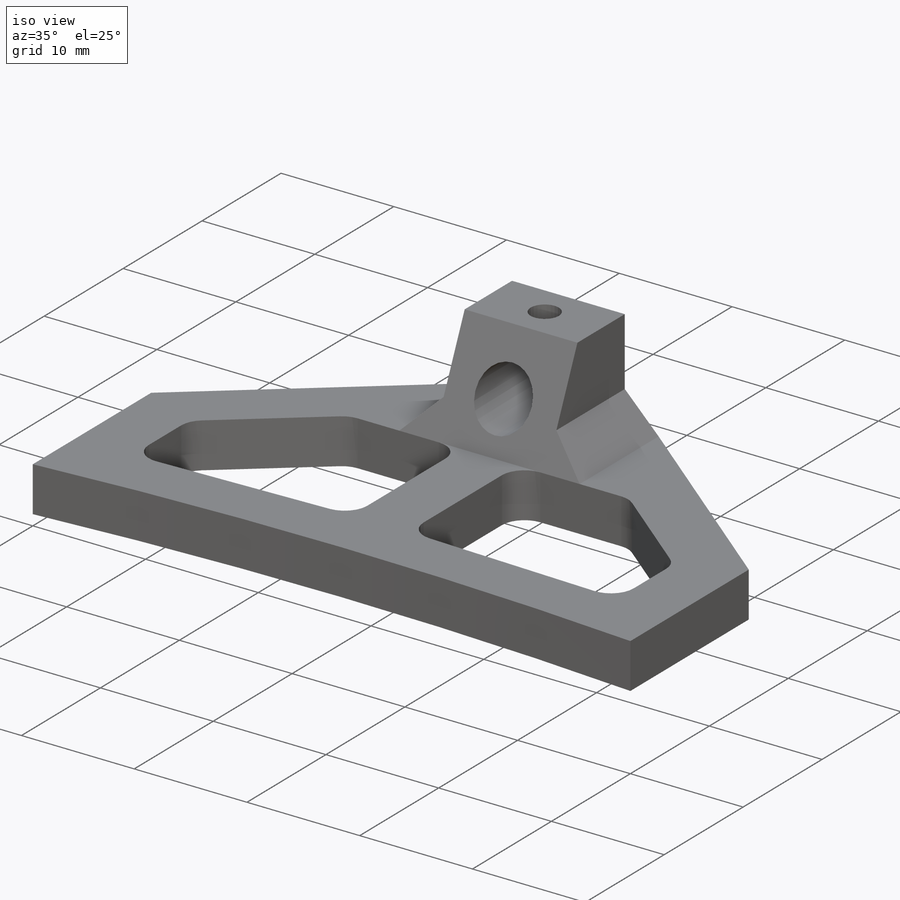
[diagram: iso view]
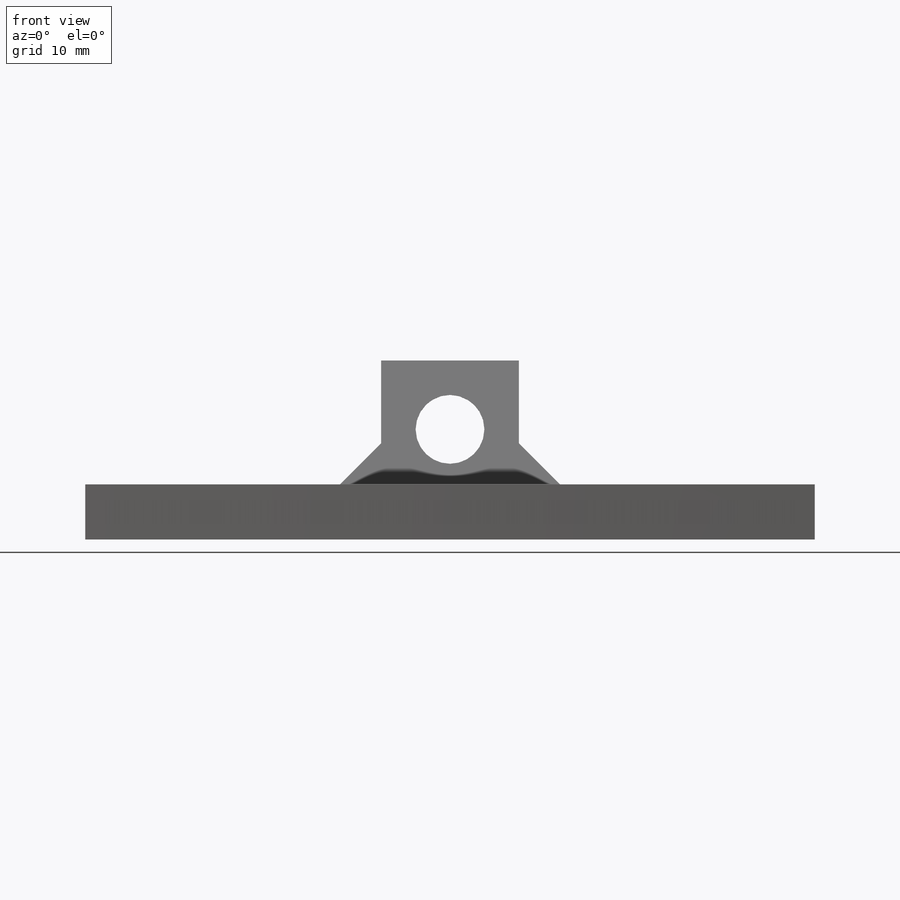
[diagram: front view]
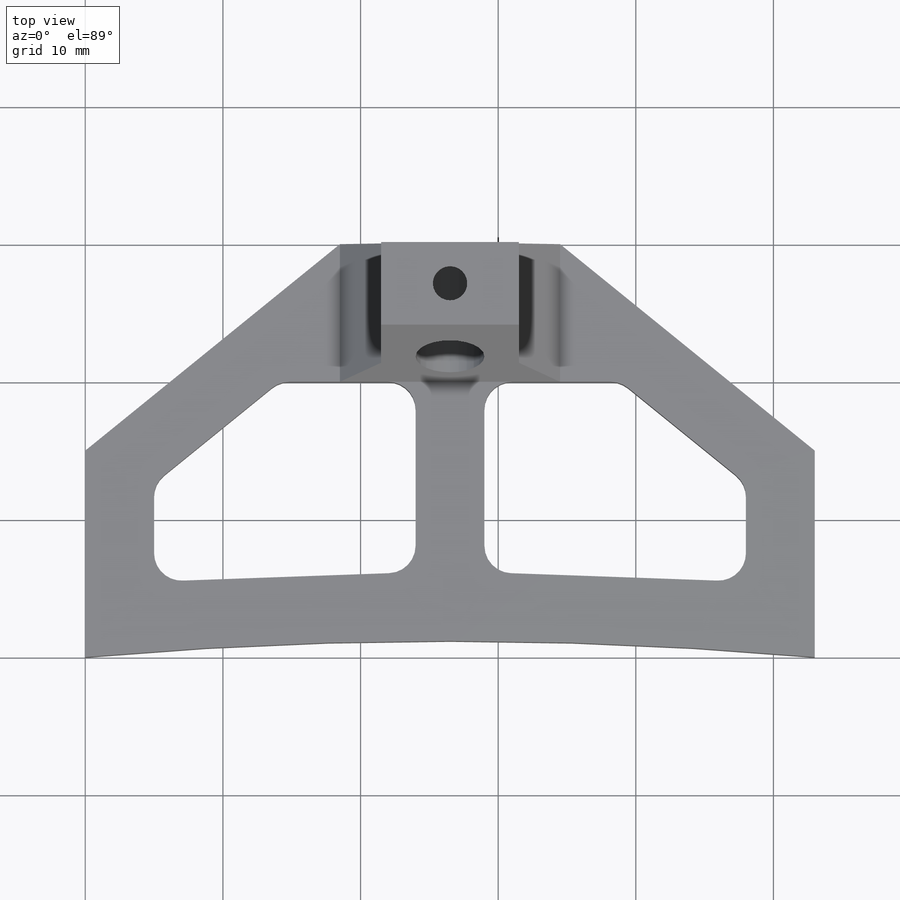
[diagram: top view]
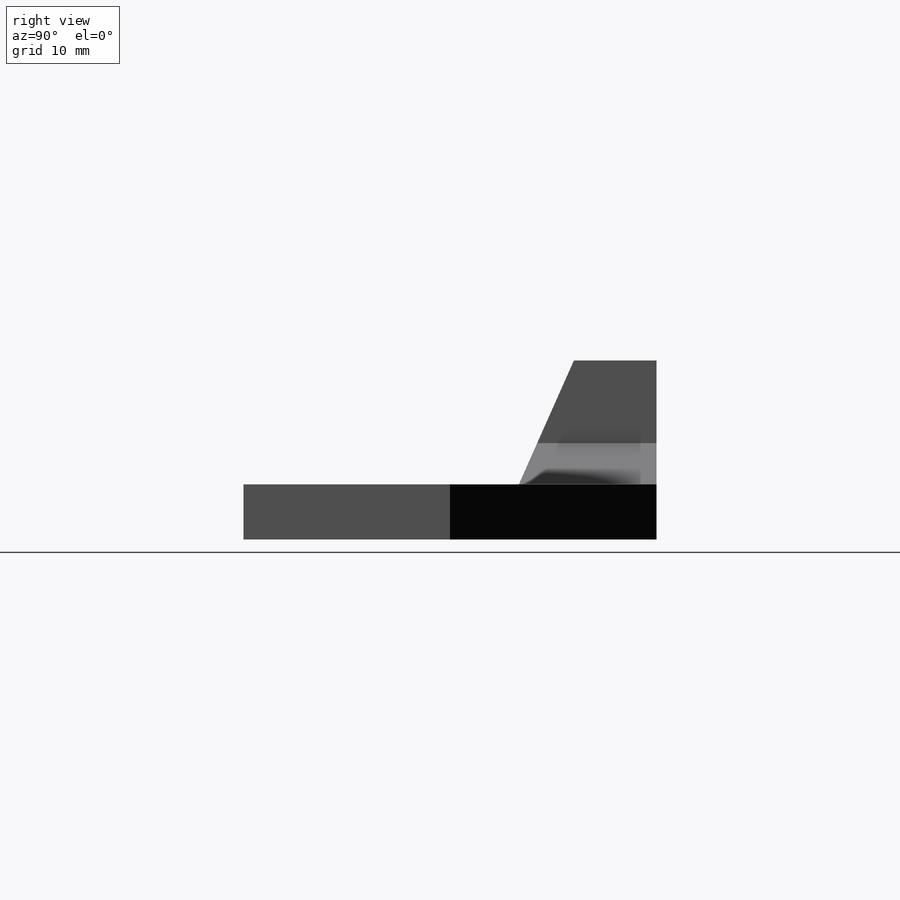
[diagram: right view]
SOLIDWORKS PART (.sldprt)
format: sldprt  version: not decoded by parser v0  size: 309,248 bytes
history: native  units: mm
features: sketch x9, cut_extrude x4, plane x3, extrude x2, chamfer x2, material x1, hole x1, thread x1 (+9 scaffold rows collapsed)
feature tree (32):
  scaffold x9  (default folders/planes/origin — collapsed)
  material  "Material <não especificado>"
  plane  "Plano frontal"
  plane  "Plano superior"
  plane  "Plano direito"
  sketch  "Esboço1"  dims[D1=53.0mm D2=4.0mm]
  extrude  "Ressalto-extrusão1"  Depth=30mm
  sketch  "Esboço2"  dims[D1=~63.205151mm]
  cut_extrude  "Corte-extrusão2"  [1 undecoded]
  sketch  "Esboço3"  dims[D1=10.0mm D2=6.0mm]
  extrude  "Ressalto-extrusão2"  Depth=9mm
  sketch  "Esboço5"
  hole  "Furo roscado de M3x0.51"  [1 undecoded]
  sketch  "Esboço7"
  thread  "Representação de rosca1"  Diameter=3mm  [1 undecoded]
  sketch  "Esboço6"  dims[hole-wizard template sketch: 47 standard entries collapsed; hole parameters kept: c15.Tap Drill Depth=4.0mm c15.D3=~14.816244mm c15.Drill Angle=118.0deg]
  sketch  "Esboço8"  dims[D1=15.0mm D2=16.0mm]
  cut_extrude  "Corte-extrusão5"  [1 undecoded]
  chamfer  "Chanfro3"  Distance=4mm
  sketch  "Esboço9"  dims[D2=2.0mm D4=2.0mm D5=2.0mm D3=5.0mm D1=5.0mm]
  cut_extrude  "Corte-extrusão6"  [1 undecoded]
  chamfer  "Chanfro4"  Distance=3mm Angle=45deg
  sketch  "Esboço10"  dims[D1=5.0mm D2=5.0mm]
  cut_extrude  "Corte-extrusão7"  [1 undecoded]
decode coverage: 12 of 19 modeling features carry decoded parameters
note: ~ marks probable driven/reference dimensions
note: 6 parameter values undecoded
summary: no parameter record found for 5 features
note: suppression state not decoded; provenance and decode notes live in map.json
